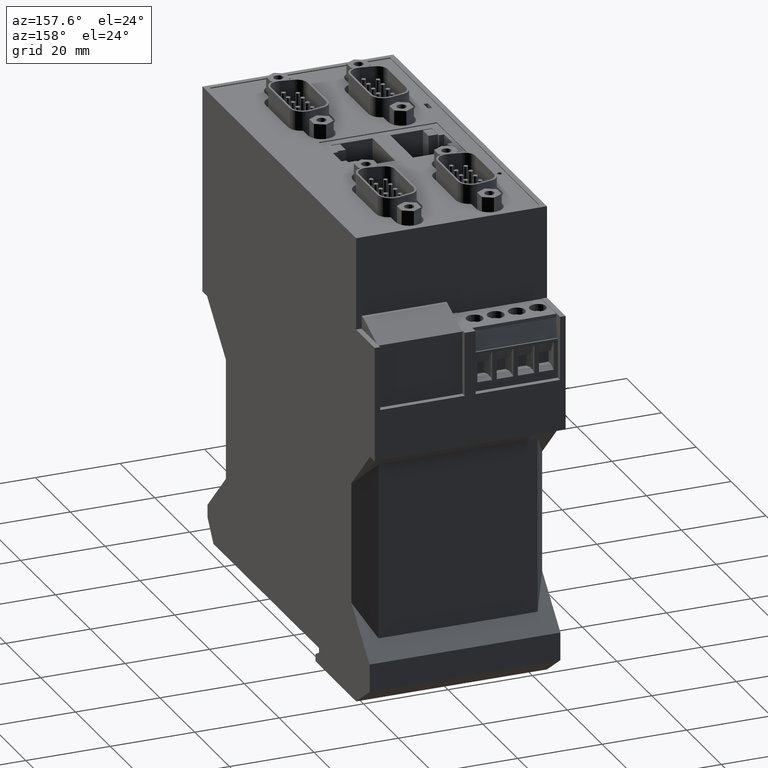
[diagram: clean part render]
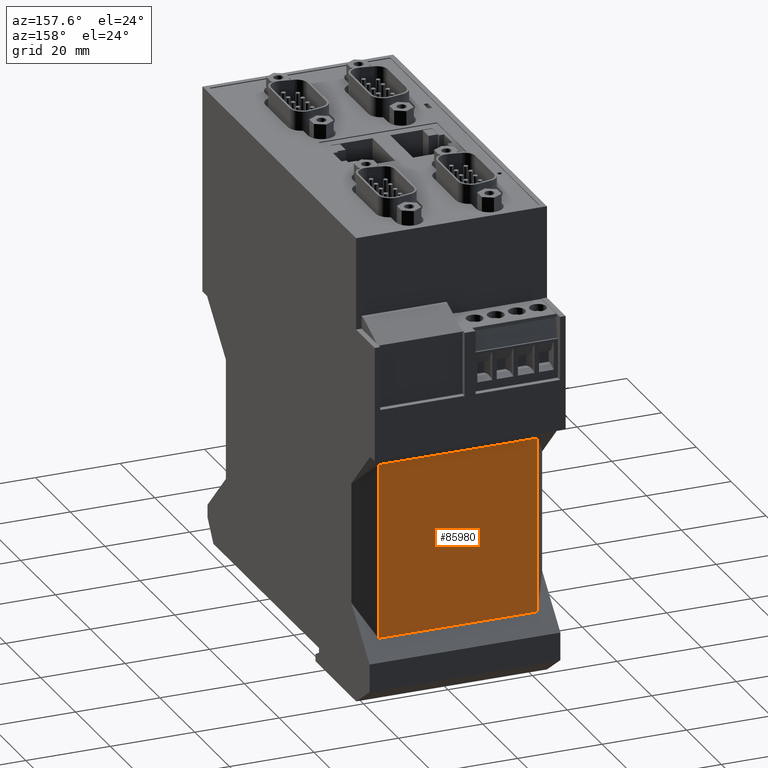
[diagram: same view with one face highlighted and labeled with its STEP entity id]
A machine part, auxiliary view. The second image highlights one B-rep face of the part: STEP entity #85980.
In plain terms, the highlighted planar face has unit normal (0, -1, -0).
Its self-contained STEP definition (entity closure, byte-faithful):
#70800=CARTESIAN_POINT('',(25.0500000000939,53.6000000000048,
30.1472232502124));
#70810=VERTEX_POINT('',#70800);
#70840=CARTESIAN_POINT('',(25.0500000000941,24.,30.1472232502123));
#70850=DIRECTION('',(-6.59999999999827E-15,1.,3.81051177665051E-15));
#70860=VECTOR('',#70850,1.);
#70870=LINE('',#70840,#70860);
#70880=CARTESIAN_POINT('',(25.0500000000942,11.9999999999957,
30.1472232502123));
#70890=VERTEX_POINT('',#70880);
#70900=EDGE_CURVE('',#70890,#70810,#70870,.T.);
#71980=CARTESIAN_POINT('',(25.0500000000871,53.599999999998,
-7.54722325026923));
#71990=VERTEX_POINT('',#71980);
#72020=CARTESIAN_POINT('',(25.0500000000854,53.5999999999963,-11.3));
#72030=DIRECTION('',(4.52799999999997E-13,4.52799999999993E-13,1.));
#72040=VECTOR('',#72030,1.);
#72050=LINE('',#72020,#72040);
#72060=EDGE_CURVE('',#71990,#70810,#72050,.T.);
#85750=CARTESIAN_POINT('',(25.0500000000904,68.5000000000004,
-1.90176763226191E-11));
#85760=DIRECTION('',(-1.,-6.6E-15,4.528E-13));
#85770=DIRECTION('',(4.528E-13,0.,1.));
#85780=AXIS2_PLACEMENT_3D('',#85750,#85760,#85770);
#85790=PLANE('',#85780);
#85800=CARTESIAN_POINT('',(25.0500000000873,24.,-7.54722325026905));
#85810=DIRECTION('',(-6.60000000000277E-15,1.,-6.11991285341162E-15));
#85820=VECTOR('',#85810,1.);
#85830=LINE('',#85800,#85820);
#85840=CARTESIAN_POINT('',(25.0500000000874,12.0000000000026,
-7.54722325026897));
#85850=VERTEX_POINT('',#85840);
#85860=EDGE_CURVE('',#85850,#71990,#85830,.T.);
#85870=ORIENTED_EDGE('',*,*,#85860,.T.);
#85880=CARTESIAN_POINT('',(25.0500000000857,12.0000000000043,-11.3));
#85890=DIRECTION('',(-4.52800000000003E-13,4.52799999999919E-13,-1.));
#85900=VECTOR('',#85890,1.);
#85910=LINE('',#85880,#85900);
#85920=EDGE_CURVE('',#70890,#85850,#85910,.T.);
#85930=ORIENTED_EDGE('',*,*,#85920,.T.);
#85940=ORIENTED_EDGE('',*,*,#70900,.F.);
#85950=ORIENTED_EDGE('',*,*,#72060,.T.);
#85960=EDGE_LOOP('',(#85950,#85940,#85930,#85870));
#85970=FACE_OUTER_BOUND('',#85960,.T.);
#85980=ADVANCED_FACE('',(#85970),#85790,.F.);